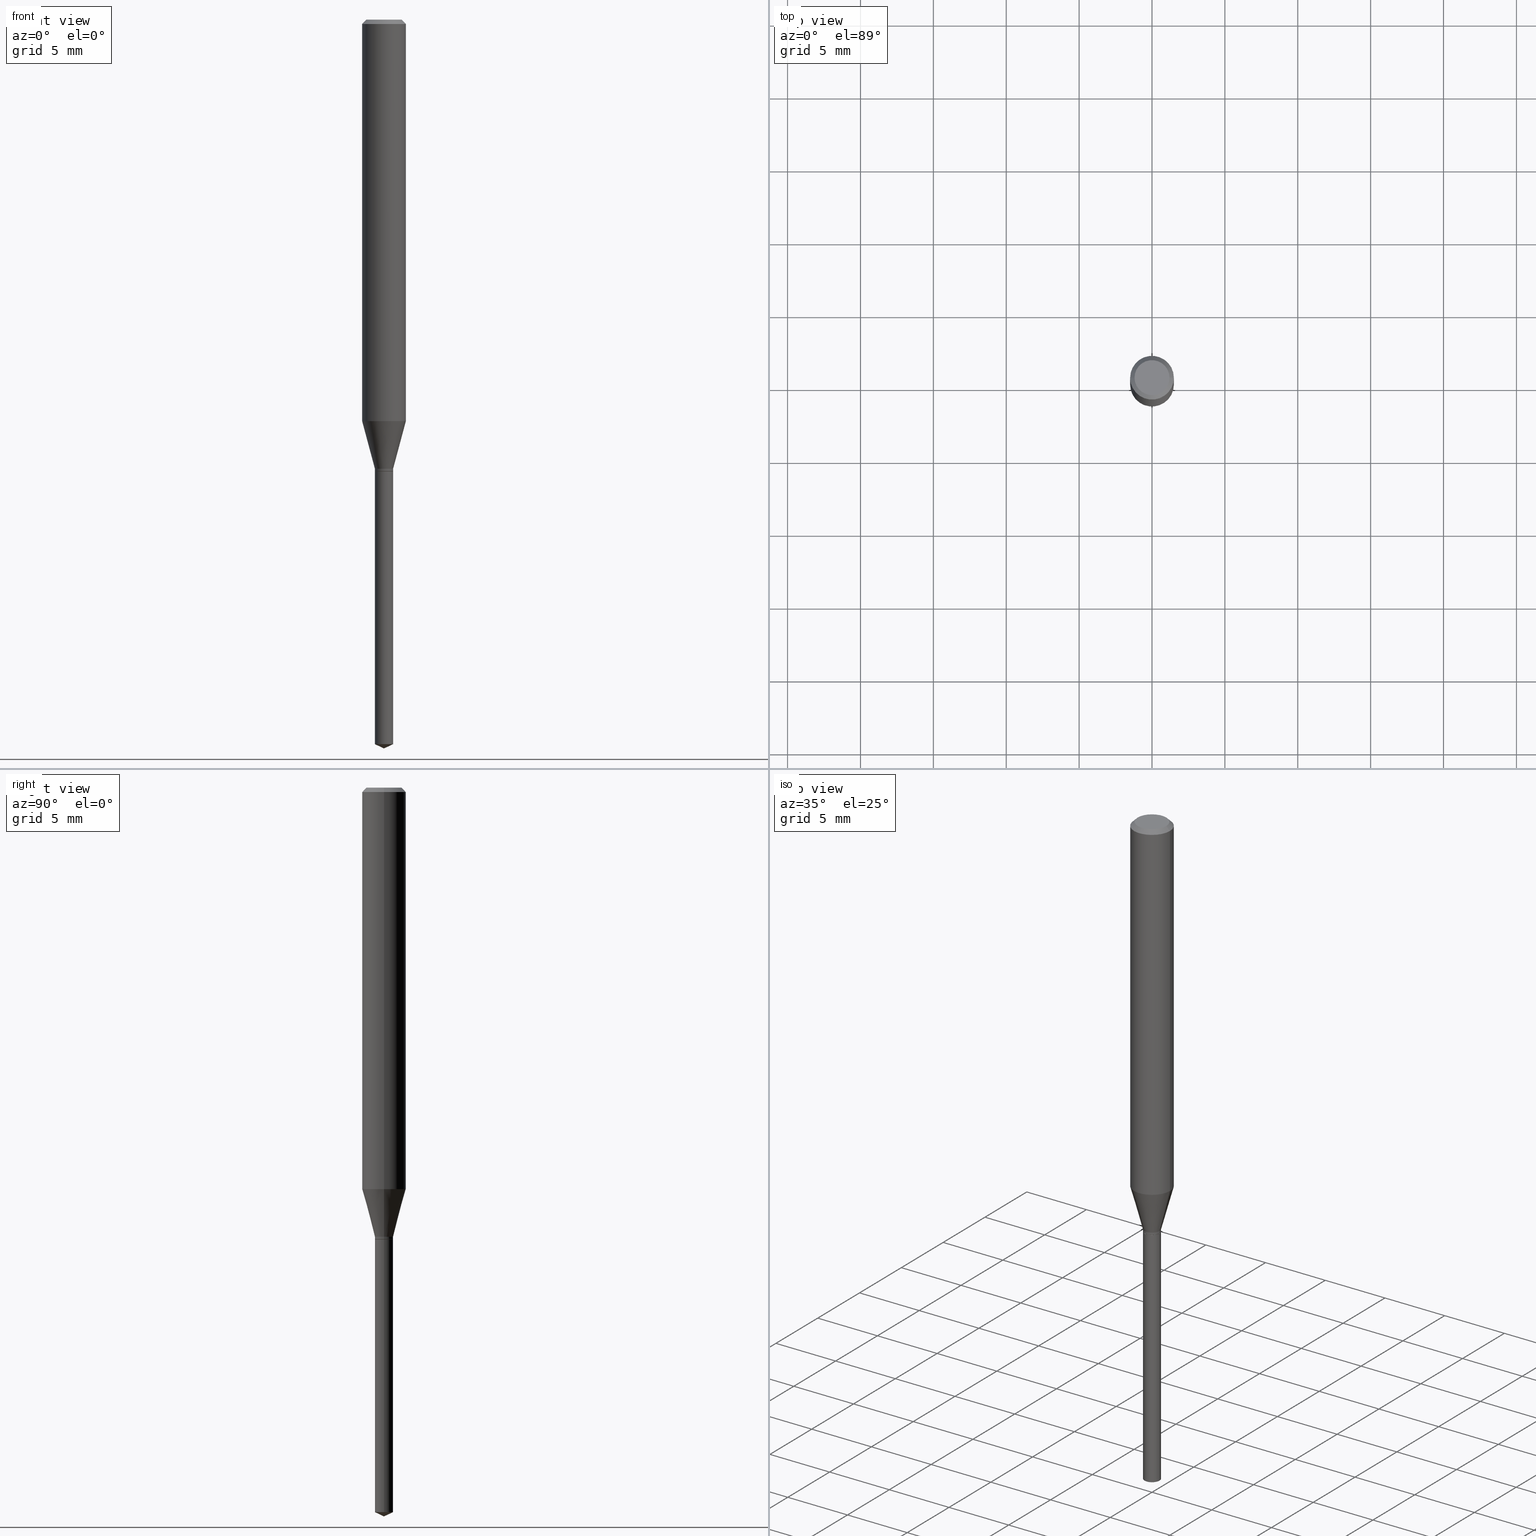
[diagram: canonical four-view strip — front | top / right | iso, engineering-drawing reading convention]
A machine part, canonical four-view strip (front | top / right | iso — engineering-drawing reading convention). The complete STEP part file that produces these views, byte-faithful:
ISO-10303-21;
HEADER;
FILE_DESCRIPTION (( 'STEP AP203' ),
    '1' );
FILE_NAME ('07511.STEP',
    '2024-04-23T22:17:53',
    ( '' ),
    ( '' ),
    'SwSTEP 2.0',
    'SolidWorks 2023',
    '' );
FILE_SCHEMA (( 'CONFIG_CONTROL_DESIGN' ));
ENDSEC;

DATA;
#1 = LINE ( 'NONE', #104, #142 ) ;
#2 = ADVANCED_FACE ( 'NONE', ( #60 ), #220, .T. ) ;
#3 = PRODUCT_RELATED_PRODUCT_CATEGORY ( 'detail', '', ( #56 ) ) ;
#4 = COORDINATED_UNIVERSAL_TIME_OFFSET ( 5, 0, .BEHIND. ) ;
#5 = FACE_OUTER_BOUND ( 'NONE', #195, .T. ) ;
#6 = VECTOR ( 'NONE', #50, 39.37007874015748143 ) ;
#7 = DIRECTION ( 'NONE',  ( 1.000000000000000000, -6.982962677686266711E-15, 4.876185090822587894E-29 ) ) ;
#8 = CARTESIAN_POINT ( 'NONE',  ( 0.02460000000000000381, -7.004710527013262258E-15, -1.957028831609387121 ) ) ;
#9 = CARTESIAN_POINT ( 'NONE',  ( -0.02460000000000000034, -5.372347796603134395E-15, -1.220499999999999696 ) ) ;
#10 = CALENDAR_DATE ( 2024, 23, 4 ) ;
#11 = ADVANCED_FACE ( 'NONE', ( #5 ), #420, .T. ) ;
#12 = CARTESIAN_POINT ( 'NONE',  ( -0.04724000000000000421, 3.504923541997677355E-16, -3.380025165670481712E-19 ) ) ;
#13 = PLANE ( 'NONE',  #227 ) ;
#14 = DIRECTION ( 'NONE',  ( -2.445468806185136597E-29, 3.491481338843145583E-15, 1.000000000000000000 ) ) ;
#15 = ORIENTED_EDGE ( 'NONE', *, *, #443, .F. ) ;
#16 = DIRECTION ( 'NONE',  ( 1.000000000000000000, -6.982962677686280121E-15, 0.000000000000000000 ) ) ;
#17 = ORIENTED_EDGE ( 'NONE', *, *, #404, .T. ) ;
#18 = DIRECTION ( 'NONE',  ( 1.000000000000000000, -6.982962677686277755E-15, 0.000000000000000000 ) ) ;
#19 = DIRECTION ( 'NONE',  ( 2.445468806185136597E-29, -3.491481338843145583E-15, -1.000000000000000000 ) ) ;
#20 = CONICAL_SURFACE ( 'NONE', #202, 84.42940631927440620, 1.134464013796316229 ) ;
#21 = AXIS2_PLACEMENT_3D ( 'NONE', #267, #229, #117 ) ;
#22 = DIRECTION ( 'NONE',  ( 1.000000000000000000, -6.982962677686266711E-15, 4.876176775795935232E-29 ) ) ;
#23 = DIRECTION ( 'NONE',  ( 1.000000000000000000, -6.982962677686280121E-15, 0.000000000000000000 ) ) ;
#24 = CARTESIAN_POINT ( 'NONE',  ( 0.02409999999999999989, -4.429642374590297494E-15, -1.220499999999999696 ) ) ;
#25 = EDGE_CURVE ( 'NONE', #316, #189, #1, .T. ) ;
#26 = CALENDAR_DATE ( 2024, 23, 4 ) ;
#27 = LINE ( 'NONE', #54, #118 ) ;
#28 = CIRCLE ( 'NONE', #329, 0.05905000000000013710 ) ;
#29 = VERTEX_POINT ( 'NONE', #34 ) ;
#30 = ADVANCED_FACE ( 'NONE', ( #187 ), #95, .T. ) ;
#31 = DIRECTION ( 'NONE',  ( 1.000000000000000000, -6.982962677686277755E-15, 0.000000000000000000 ) ) ;
#32 = AXIS2_PLACEMENT_3D ( 'NONE', #244, #403, #209 ) ;
#33 = ORIENTED_EDGE ( 'NONE', *, *, #100, .F. ) ;
#34 = CARTESIAN_POINT ( 'NONE',  ( 0.02460000000000001422, -4.407296894021703037E-15, -1.213100000000000067 ) ) ;
#35 = EDGE_CURVE ( 'NONE', #411, #395, #413, .T. ) ;
#36 = ORIENTED_EDGE ( 'NONE', *, *, #74, .F. ) ;
#37 = PERSON_AND_ORGANIZATION_ROLE ( 'creator' ) ;
#38 = ADVANCED_BREP_SHAPE_REPRESENTATION ( '07511', ( #454, #441, #271 ), #228 ) ;
#39 = EDGE_LOOP ( 'NONE', ( #300, #412 ) ) ;
#40 = DIRECTION ( 'NONE',  ( 0.000000000000000000, 0.000000000000000000, 1.000000000000000000 ) ) ;
#41 = DIRECTION ( 'NONE',  ( 1.000000000000000000, -6.982962677686265922E-15, 4.876176775795935793E-29 ) ) ;
#42 = CARTESIAN_POINT ( 'NONE',  ( 0.04724000000000000421, -3.852183633974369838E-16, -3.380025165621689721E-19 ) ) ;
#43 = DIRECTION ( 'NONE',  ( -0.2588190451025213501, 5.211531920934551042E-15, 0.9659258262890682012 ) ) ;
#44 = AXIS2_PLACEMENT_3D ( 'NONE', #406, #57, #485 ) ;
#45 = DESIGN_CONTEXT ( 'detailed design', #375, 'design' ) ;
#46 = ORIENTED_EDGE ( 'NONE', *, *, #374, .T. ) ;
#47 = CARTESIAN_POINT ( 'NONE',  ( -0.02460000000000001769, -4.072768109772643638E-15, -1.219999999999999751 ) ) ;
#48 = FACE_OUTER_BOUND ( 'NONE', #67, .T. ) ;
#49 = DIRECTION ( 'NONE',  ( -2.445468806185136877E-29, 3.491481338843145188E-15, 1.000000000000000000 ) ) ;
#50 = DIRECTION ( 'NONE',  ( -0.9063077870366508249, 7.915267918739014631E-15, 0.4226182617406975539 ) ) ;
#51 = CIRCLE ( 'NONE', #474, 0.02460000000000001422 ) ;
#52 = APPROVAL ( #148, 'UNSPECIFIED' ) ;
#53 =( LENGTH_UNIT ( ) NAMED_UNIT ( * ) SI_UNIT ( $, .METRE. ) );
#54 = CARTESIAN_POINT ( 'NONE',  ( 0.05905000000000006771, -4.123439461173745257E-16, 2.879382386107503723E-30 ) ) ;
#55 = DIRECTION ( 'NONE',  ( -2.445468806185136877E-29, 3.491481338843145188E-15, 1.000000000000000000 ) ) ;
#56 = PRODUCT ( '07511', '07511', '', ( #139 ) ) ;
#57 = DIRECTION ( 'NONE',  ( -2.445468806185136597E-29, 3.491481338843145583E-15, 1.000000000000000000 ) ) ;
#58 = VECTOR ( 'NONE', #385, 39.37007874015747433 ) ;
#59 = ADVANCED_FACE ( 'NONE', ( #307 ), #434, .T. ) ;
#60 = FACE_OUTER_BOUND ( 'NONE', #349, .T. ) ;
#61 = ORIENTED_EDGE ( 'NONE', *, *, #171, .F. ) ;
#62 = ORIENTED_EDGE ( 'NONE', *, *, #35, .T. ) ;
#63 = AXIS2_PLACEMENT_3D ( 'NONE', #429, #237, #384 ) ;
#64 = EDGE_CURVE ( 'NONE', #316, #342, #159, .T. ) ;
#65 = CIRCLE ( 'NONE', #88, 0.02460000000000000034 ) ;
#66 = APPLICATION_PROTOCOL_DEFINITION ( 'international standard', 'config_control_design', 1994, #339 ) ;
#67 = EDGE_LOOP ( 'NONE', ( #235, #255, #17, #238 ) ) ;
#68 = DATE_AND_TIME ( #414, #334 ) ;
#69 = ORIENTED_EDGE ( 'NONE', *, *, #404, .F. ) ;
#70 = AXIS2_PLACEMENT_3D ( 'NONE', #376, #261, #31 ) ;
#71 = VECTOR ( 'NONE', #55, 39.37007874015748143 ) ;
#72 = APPROVAL_PERSON_ORGANIZATION ( #154, #377, #264 ) ;
#73 = CARTESIAN_POINT ( 'NONE',  ( -0.05905000000000000526, -1.494351323366933161E-15, -0.01181000000000007738 ) ) ;
#74 = EDGE_CURVE ( 'NONE', #206, #105, #481, .T. ) ;
#75 = LINE ( 'NONE', #389, #86 ) ;
#76 = EDGE_LOOP ( 'NONE', ( #387, #319 ) ) ;
#77 = CARTESIAN_POINT ( 'NONE',  ( 2.984694677948958351E-29, -4.261352974058058239E-15, -1.220499999999999696 ) ) ;
#78 = DIRECTION ( 'NONE',  ( 0.7071067811865353603, -2.468850131082130054E-15, 0.7071067811865595631 ) ) ;
#79 = ORIENTED_EDGE ( 'NONE', *, *, #231, .F. ) ;
#80 = CARTESIAN_POINT ( 'NONE',  ( 0.05905000000000013710, -4.198963169172184472E-15, -1.084530849679252063 ) ) ;
#81 = CARTESIAN_POINT ( 'NONE',  ( -0.02460000000000001422, -4.060722499153635658E-15, -1.213100000000000067 ) ) ;
#82 = DIRECTION ( 'NONE',  ( -2.445468806185136597E-29, 3.491481338843145583E-15, 1.000000000000000000 ) ) ;
#83 = ORIENTED_EDGE ( 'NONE', *, *, #310, .T. ) ;
#84 = CC_DESIGN_PERSON_AND_ORGANIZATION_ASSIGNMENT ( #157, #370, ( #324 ) ) ;
#85 = CARTESIAN_POINT ( 'NONE',  ( 4.813905344975441835E-29, -6.872981015512731707E-15, -1.968500000000000139 ) ) ;
#86 = VECTOR ( 'NONE', #196, 39.37007874015748143 ) ;
#87 = DIRECTION ( 'NONE',  ( -2.445468806185136597E-29, 3.491481338843145583E-15, 1.000000000000000000 ) ) ;
#88 = AXIS2_PLACEMENT_3D ( 'NONE', #315, #269, #311 ) ;
#89 = ORGANIZATION ( 'UNSPECIFIED', 'UNSPECIFIED', '' ) ;
#90 = CARTESIAN_POINT ( 'NONE',  ( 0.000000000000000000, 0.000000000000000000, 0.000000000000000000 ) ) ;
#91 = LINE ( 'NONE', #81, #372 ) ;
#92 = EDGE_CURVE ( 'NONE', #197, #410, #75, .T. ) ;
#93 = PLANE ( 'NONE',  #32 ) ;
#94 = ADVANCED_FACE ( 'NONE', ( #437 ), #367, .T. ) ;
#95 = CONICAL_SURFACE ( 'NONE', #379, 0.02460000000000001422, 0.2617993877991500740 ) ;
#96 = LOCAL_TIME ( 18, 17, 53.00000000000000000, #4 ) ;
#97 = CYLINDRICAL_SURFACE ( 'NONE', #44, 0.02460000000000000034 ) ;
#98 = ORIENTED_EDGE ( 'NONE', *, *, #217, .F. ) ;
#99 =( NAMED_UNIT ( * ) PLANE_ANGLE_UNIT ( ) SI_UNIT ( $, .RADIAN. ) );
#100 = EDGE_CURVE ( 'NONE', #410, #395, #91, .T. ) ;
#101 = ORIENTED_EDGE ( 'NONE', *, *, #348, .F. ) ;
#102 = AXIS2_PLACEMENT_3D ( 'NONE', #127, #87, #241 ) ;
#103 = ORIENTED_EDGE ( 'NONE', *, *, #138, .T. ) ;
#104 = CARTESIAN_POINT ( 'NONE',  ( -0.02460000000000000034, -4.086559461061073911E-15, -1.220499999999999918 ) ) ;
#105 = VERTEX_POINT ( 'NONE', #42 ) ;
#106 = DATE_AND_TIME ( #251, #288 ) ;
#107 = VERTEX_POINT ( 'NONE', #468 ) ;
#108 = APPROVAL_STATUS ( 'not_yet_approved' ) ;
#109 = PERSON_AND_ORGANIZATION_ROLE ( 'design_owner' ) ;
#110 = ORIENTED_EDGE ( 'NONE', *, *, #331, .T. ) ;
#111 = CARTESIAN_POINT ( 'NONE',  ( 0.02460000000000000034, -4.433133855929140501E-15, -1.220499999999999696 ) ) ;
#112 = EDGE_CURVE ( 'NONE', #125, #107, #433, .T. ) ;
#113 = DIRECTION ( 'NONE',  ( 1.000000000000000000, -6.982962677686264344E-15, 0.000000000000000000 ) ) ;
#114 = PERSON ( 'UNSPECIFIED', 'UNSPECIFIED', 'UNSPECIFIED', ('UNSPECIFIED'), ('UNSPECIFIED'), ('UNSPECIFIED') ) ;
#115 = PERSON_AND_ORGANIZATION ( #114, #89 ) ;
#116 = DIRECTION ( 'NONE',  ( 1.000000000000000000, -6.982962677686277755E-15, 0.000000000000000000 ) ) ;
#117 = DIRECTION ( 'NONE',  ( 1.000000000000000000, -6.982962677686267499E-15, 0.000000000000000000 ) ) ;
#118 = VECTOR ( 'NONE', #365, 39.37007874015748143 ) ;
#119 = CC_DESIGN_SECURITY_CLASSIFICATION ( #324, ( #301 ) ) ;
#120 = FACE_OUTER_BOUND ( 'NONE', #165, .T. ) ;
#121 = DIRECTION ( 'NONE',  ( -2.445468806185136597E-29, 3.491481338843145583E-15, 1.000000000000000000 ) ) ;
#122 = ORIENTED_EDGE ( 'NONE', *, *, #64, .T. ) ;
#123 = CARTESIAN_POINT ( 'NONE',  ( 2.984694677948958351E-29, -4.261352974058058239E-15, -1.220499999999999696 ) ) ;
#124 = EDGE_CURVE ( 'NONE', #189, #355, #129, .T. ) ;
#125 = VERTEX_POINT ( 'NONE', #73 ) ;
#126 = LINE ( 'NONE', #85, #136 ) ;
#127 = CARTESIAN_POINT ( 'NONE',  ( -9.146439411113230710E-28, 1.305869142145323662E-13, 37.40157874015748263 ) ) ;
#128 = SHAPE_DEFINITION_REPRESENTATION ( #408, #38 ) ;
#129 = CIRCLE ( 'NONE', #473, 0.02460000000000000034 ) ;
#130 = CYLINDRICAL_SURFACE ( 'NONE', #221, 0.02460000000000001769 ) ;
#131 = CARTESIAN_POINT ( 'NONE',  ( -0.02409999999999999989, -4.087462947565762820E-15, -1.220499999999999696 ) ) ;
#132 = DIRECTION ( 'NONE',  ( -2.445468806185136597E-29, 3.491481338843145583E-15, 1.000000000000000000 ) ) ;
#133 = FACE_OUTER_BOUND ( 'NONE', #285, .T. ) ;
#134 = DIRECTION ( 'NONE',  ( 2.445468806185136597E-29, -3.491481338843145583E-15, -1.000000000000000000 ) ) ;
#135 = AXIS2_PLACEMENT_3D ( 'NONE', #191, #345, #7 ) ;
#136 = VECTOR ( 'NONE', #277, 39.37007874015748143 ) ;
#137 = ORIENTED_EDGE ( 'NONE', *, *, #348, .T. ) ;
#138 = EDGE_CURVE ( 'NONE', #218, #197, #407, .T. ) ;
#139 = MECHANICAL_CONTEXT ( 'NONE', #339, 'mechanical' ) ;
#140 = LINE ( 'NONE', #252, #421 ) ;
#141 = ORIENTED_EDGE ( 'NONE', *, *, #217, .T. ) ;
#142 = VECTOR ( 'NONE', #257, 39.37007874015748143 ) ;
#143 = ORIENTED_EDGE ( 'NONE', *, *, #112, .F. ) ;
#144 = ORIENTED_EDGE ( 'NONE', *, *, #284, .T. ) ;
#145 = CC_DESIGN_PERSON_AND_ORGANIZATION_ASSIGNMENT ( #115, #109, ( #56 ) ) ;
#146 = ORIENTED_EDGE ( 'NONE', *, *, #25, .T. ) ;
#147 =( NAMED_UNIT ( * ) SI_UNIT ( $, .STERADIAN. ) SOLID_ANGLE_UNIT ( ) );
#148 = APPROVAL_STATUS ( 'not_yet_approved' ) ;
#149 = CARTESIAN_POINT ( 'NONE',  ( 2.984694677948958351E-29, -4.261352974058058239E-15, -1.220499999999999696 ) ) ;
#150 = AXIS2_PLACEMENT_3D ( 'NONE', #397, #167, #193 ) ;
#151 = VECTOR ( 'NONE', #359, 39.37007874015748143 ) ;
#152 = CARTESIAN_POINT ( 'NONE',  ( -0.05905000000000013710, -3.367043737588469664E-15, -1.084530849679252063 ) ) ;
#153 = CARTESIAN_POINT ( 'NONE',  ( 2.652186362236072778E-29, -3.786619223054809552E-15, -1.084530849679252063 ) ) ;
#154 = PERSON_AND_ORGANIZATION ( #114, #89 ) ;
#155 = CARTESIAN_POINT ( 'NONE',  ( 2.984694677948958351E-29, -4.261352974058058239E-15, -1.220499999999999696 ) ) ;
#156 = DIRECTION ( 'NONE',  ( -2.445468806185136597E-29, 3.491481338843145583E-15, 1.000000000000000000 ) ) ;
#157 = PERSON_AND_ORGANIZATION ( #114, #89 ) ;
#158 = ORIENTED_EDGE ( 'NONE', *, *, #92, .F. ) ;
#159 = CIRCLE ( 'NONE', #63, 0.02460000000000000034 ) ;
#160 = FACE_OUTER_BOUND ( 'NONE', #225, .T. ) ;
#161 = CIRCLE ( 'NONE', #442, 0.02460000000000000034 ) ;
#162 = EDGE_CURVE ( 'NONE', #197, #218, #240, .T. ) ;
#163 = CARTESIAN_POINT ( 'NONE',  ( 0.02409999999999999989, -4.429642374590297494E-15, -1.220499999999999696 ) ) ;
#164 = DIRECTION ( 'NONE',  ( -2.445468806185136597E-29, 3.491481338843145583E-15, 1.000000000000000000 ) ) ;
#165 = EDGE_LOOP ( 'NONE', ( #381, #144, #141, #360 ) ) ;
#166 = CALENDAR_DATE ( 2024, 23, 4 ) ;
#167 = DIRECTION ( 'NONE',  ( -2.445468806185136597E-29, 3.491481338843145583E-15, 1.000000000000000000 ) ) ;
#168 = DATE_AND_TIME ( #166, #364 ) ;
#169 = DIRECTION ( 'NONE',  ( -2.445468806185136597E-29, 3.491481338843145583E-15, 1.000000000000000000 ) ) ;
#170 = AXIS2_PLACEMENT_3D ( 'NONE', #233, #419, #204 ) ;
#171 = EDGE_CURVE ( 'NONE', #105, #107, #351, .T. ) ;
#172 = CARTESIAN_POINT ( 'NONE',  ( 2.984694677948958351E-29, -4.261352974058058239E-15, -1.220499999999999696 ) ) ;
#173 = CARTESIAN_POINT ( 'NONE',  ( 4.813905344975441835E-29, -6.872981015512731707E-15, -1.968500000000000139 ) ) ;
#174 = CARTESIAN_POINT ( 'NONE',  ( 0.02460000000000001769, -1.717808818710822867E-16, 1.199539486845800937E-30 ) ) ;
#175 = CARTESIAN_POINT ( 'NONE',  ( 2.888098660104665518E-31, -4.123439461173782112E-17, -0.01181000000000007738 ) ) ;
#176 = EDGE_CURVE ( 'NONE', #395, #125, #203, .T. ) ;
#177 = VECTOR ( 'NONE', #78, 39.37007874015748854 ) ;
#178 = ORIENTED_EDGE ( 'NONE', *, *, #326, .F. ) ;
#179 = PERSON_AND_ORGANIZATION ( #114, #89 ) ;
#180 = ORIENTED_EDGE ( 'NONE', *, *, #337, .T. ) ;
#181 = COORDINATED_UNIVERSAL_TIME_OFFSET ( 5, 0, .BEHIND. ) ;
#182 = EDGE_CURVE ( 'NONE', #29, #410, #51, .T. ) ;
#183 = ORIENTED_EDGE ( 'NONE', *, *, #266, .F. ) ;
#184 = AXIS2_PLACEMENT_3D ( 'NONE', #90, #82, #423 ) ;
#185 = CIRCLE ( 'NONE', #170, 0.02460000000000001422 ) ;
#186 = DIRECTION ( 'NONE',  ( -2.445468806185136597E-29, 3.491481338843145583E-15, 1.000000000000000000 ) ) ;
#187 = FACE_OUTER_BOUND ( 'NONE', #446, .T. ) ;
#188 = APPLICATION_PROTOCOL_DEFINITION ( 'international standard', 'config_control_design', 1994, #375 ) ;
#189 = VERTEX_POINT ( 'NONE', #9 ) ;
#190 = PRODUCT_DEFINITION ( 'UNKNOWN', '', #301, #45 ) ;
#191 = CARTESIAN_POINT ( 'NONE',  ( 8.265746106709734507E-48, -1.180129479067563789E-33, -3.380025165646692144E-19 ) ) ;
#192 = AXIS2_PLACEMENT_3D ( 'NONE', #199, #464, #278 ) ;
#193 = DIRECTION ( 'NONE',  ( 1.000000000000000000, -6.982962677686266711E-15, 4.876176775795936353E-29 ) ) ;
#194 = PERSON_AND_ORGANIZATION_ROLE ( 'creator' ) ;
#195 = EDGE_LOOP ( 'NONE', ( #180, #110, #290, #98 ) ) ;
#196 = DIRECTION ( 'NONE',  ( -2.445468806185136877E-29, 3.491481338843145188E-15, 1.000000000000000000 ) ) ;
#197 = VERTEX_POINT ( 'NONE', #47 ) ;
#198 = CC_DESIGN_PERSON_AND_ORGANIZATION_ASSIGNMENT ( #383, #37, ( #301 ) ) ;
#199 = CARTESIAN_POINT ( 'NONE',  ( 2.983471943545865549E-29, -4.259607233388635946E-15, -1.219999999999999751 ) ) ;
#200 = APPROVAL_STATUS ( 'not_yet_approved' ) ;
#201 = ORIENTED_EDGE ( 'NONE', *, *, #443, .T. ) ;
#202 = AXIS2_PLACEMENT_3D ( 'NONE', #358, #320, #427 ) ;
#203 = LINE ( 'NONE', #393, #151 ) ;
#204 = DIRECTION ( 'NONE',  ( 1.000000000000000000, -6.982962677686277755E-15, 0.000000000000000000 ) ) ;
#205 = LINE ( 'NONE', #173, #6 ) ;
#206 = VERTEX_POINT ( 'NONE', #12 ) ;
#207 = CARTESIAN_POINT ( 'NONE',  ( 8.265746106709734507E-48, -1.180129479067563789E-33, -3.380025165646692144E-19 ) ) ;
#208 = CARTESIAN_POINT ( 'NONE',  ( -0.02460000000000000381, -6.658136132145194879E-15, -1.957028831609387121 ) ) ;
#209 = DIRECTION ( 'NONE',  ( -1.000000000000000000, 6.982962677686265922E-15, -4.876176775795935793E-29 ) ) ;
#210 = AXIS2_PLACEMENT_3D ( 'NONE', #149, #186, #335 ) ;
#211 = CONICAL_SURFACE ( 'NONE', #449, 0.05905000000000000526, 0.7853981633974452814 ) ;
#212 = ADVANCED_FACE ( 'NONE', ( #472 ), #130, .T. ) ;
#213 = LINE ( 'NONE', #369, #253 ) ;
#214 = DIRECTION ( 'NONE',  ( -0.7071067811865453523, 2.468850131082234184E-15, -0.7071067811865496822 ) ) ;
#215 = CIRCLE ( 'NONE', #281, 0.02409999999999999989 ) ;
#216 = DATE_TIME_ROLE ( 'creation_date' ) ;
#217 = EDGE_CURVE ( 'NONE', #430, #218, #460, .T. ) ;
#218 = VERTEX_POINT ( 'NONE', #282 ) ;
#219 = ORIENTED_EDGE ( 'NONE', *, *, #337, .F. ) ;
#220 = CONICAL_SURFACE ( 'NONE', #70, 0.02460000000000001422, 0.2617993877991500740 ) ;
#221 = AXIS2_PLACEMENT_3D ( 'NONE', #305, #14, #471 ) ;
#222 = ORIENTED_EDGE ( 'NONE', *, *, #25, .F. ) ;
#223 = ORIENTED_EDGE ( 'NONE', *, *, #176, .T. ) ;
#224 = APPROVAL_DATE_TIME ( #68, #377 ) ;
#225 = EDGE_LOOP ( 'NONE', ( #103, #459, #232, #15 ) ) ;
#226 = DIRECTION ( 'NONE',  ( 1.000000000000000000, -6.982962677686264344E-15, 0.000000000000000000 ) ) ;
#227 = AXIS2_PLACEMENT_3D ( 'NONE', #350, #304, #400 ) ;
#228 =( GEOMETRIC_REPRESENTATION_CONTEXT ( 3 ) GLOBAL_UNCERTAINTY_ASSIGNED_CONTEXT ( ( #296 ) ) GLOBAL_UNIT_ASSIGNED_CONTEXT ( ( #260, #99, #147 ) ) REPRESENTATION_CONTEXT ( 'NONE', 'WORKASPACE' ) );
#229 = DIRECTION ( 'NONE',  ( -2.445468806185136597E-29, 3.491481338843145583E-15, 1.000000000000000000 ) ) ;
#230 = LENGTH_MEASURE_WITH_UNIT ( LENGTH_MEASURE( 0.02539999999999999897 ), #53 );
#231 = EDGE_CURVE ( 'NONE', #395, #411, #28, .T. ) ;
#232 = ORIENTED_EDGE ( 'NONE', *, *, #182, .F. ) ;
#233 = CARTESIAN_POINT ( 'NONE',  ( 2.966598208783189597E-29, -4.235516012150619986E-15, -1.213100000000000067 ) ) ;
#234 = CARTESIAN_POINT ( 'NONE',  ( 2.984694677948958351E-29, -4.261352974058058239E-15, -1.220499999999999696 ) ) ;
#235 = ORIENTED_EDGE ( 'NONE', *, *, #440, .F. ) ;
#236 = COORDINATED_UNIVERSAL_TIME_OFFSET ( 5, 0, .BEHIND. ) ;
#237 = DIRECTION ( 'NONE',  ( -2.445468806185136597E-29, 3.491481338843145583E-15, 1.000000000000000000 ) ) ;
#238 = ORIENTED_EDGE ( 'NONE', *, *, #268, .F. ) ;
#239 = CARTESIAN_POINT ( 'NONE',  ( -0.02409999999999999989, -4.090112174739874021E-15, -1.220499999999999696 ) ) ;
#240 = CIRCLE ( 'NONE', #192, 0.02460000000000001769 ) ;
#241 = DIRECTION ( 'NONE',  ( 1.000000000000000000, -6.982962677686266711E-15, 0.000000000000000000 ) ) ;
#242 = CARTESIAN_POINT ( 'NONE',  ( 0.000000000000000000, 0.000000000000000000, 0.000000000000000000 ) ) ;
#243 = CC_DESIGN_DATE_AND_TIME_ASSIGNMENT ( #336, #390, ( #324 ) ) ;
#244 = CARTESIAN_POINT ( 'NONE',  ( 7.716958325296806448E-29, 2.515517912663959101E-15, -1.220499999999999696 ) ) ;
#245 = AXIS2_PLACEMENT_3D ( 'NONE', #361, #368, #325 ) ;
#246 = CARTESIAN_POINT ( 'NONE',  ( 2.984694677948958351E-29, -4.261352974058058239E-15, -1.220499999999999696 ) ) ;
#247 = EDGE_CURVE ( 'NONE', #342, #316, #65, .T. ) ;
#248 = ADVANCED_FACE ( 'NONE', ( #120 ), #287, .T. ) ;
#249 = ORIENTED_EDGE ( 'NONE', *, *, #182, .T. ) ;
#250 = DIRECTION ( 'NONE',  ( 1.000000000000000000, -6.982962677686266711E-15, 4.876185090822587894E-29 ) ) ;
#251 = CALENDAR_DATE ( 2024, 23, 4 ) ;
#252 = CARTESIAN_POINT ( 'NONE',  ( 0.02460000000000000034, -4.433133855929141290E-15, -1.220499999999999918 ) ) ;
#253 = VECTOR ( 'NONE', #214, 39.37007874015748143 ) ;
#254 = ADVANCED_FACE ( 'NONE', ( #318 ), #354, .T. ) ;
#255 = ORIENTED_EDGE ( 'NONE', *, *, #171, .T. ) ;
#256 = ORIENTED_EDGE ( 'NONE', *, *, #247, .T. ) ;
#257 = DIRECTION ( 'NONE',  ( -2.445468806185136877E-29, 3.491481338843145188E-15, 1.000000000000000000 ) ) ;
#258 = ORIENTED_EDGE ( 'NONE', *, *, #100, .T. ) ;
#259 = CIRCLE ( 'NONE', #435, 0.02409999999999999989 ) ;
#260 =( CONVERSION_BASED_UNIT ( 'INCH', #230 ) LENGTH_UNIT ( ) NAMED_UNIT ( #439 ) );
#261 = DIRECTION ( 'NONE',  ( -2.445468806185136597E-29, 3.491481338843145583E-15, 1.000000000000000000 ) ) ;
#262 = EDGE_CURVE ( 'NONE', #424, #316, #205, .T. ) ;
#263 = ORIENTED_EDGE ( 'NONE', *, *, #268, .T. ) ;
#264 = APPROVAL_ROLE ( '' ) ;
#265 = LINE ( 'NONE', #416, #58 ) ;
#266 = EDGE_CURVE ( 'NONE', #411, #107, #27, .T. ) ;
#267 = CARTESIAN_POINT ( 'NONE',  ( 2.888098660104665518E-31, -4.123439461173782112E-17, -0.01181000000000007738 ) ) ;
#268 = EDGE_CURVE ( 'NONE', #206, #125, #213, .T. ) ;
#269 = DIRECTION ( 'NONE',  ( -2.445468806185136597E-29, 3.491481338843145583E-15, 1.000000000000000000 ) ) ;
#270 = DIRECTION ( 'NONE',  ( -2.445468806185136597E-29, 3.491481338843145583E-15, 1.000000000000000000 ) ) ;
#271 = AXIS2_PLACEMENT_3D ( 'NONE', #453, #40, #332 ) ;
#272 = PLANE ( 'NONE',  #343 ) ;
#273 = DIRECTION ( 'NONE',  ( -2.445468806185136597E-29, 3.491481338843145583E-15, 1.000000000000000000 ) ) ;
#274 = ORIENTED_EDGE ( 'NONE', *, *, #310, .F. ) ;
#275 = FACE_OUTER_BOUND ( 'NONE', #76, .T. ) ;
#276 = ORIENTED_EDGE ( 'NONE', *, *, #262, .T. ) ;
#277 = DIRECTION ( 'NONE',  ( 0.9063077870366508249, -4.853149677051392201E-15, 0.4226182617406975539 ) ) ;
#278 = DIRECTION ( 'NONE',  ( 1.000000000000000000, -6.982962677686276966E-15, 0.000000000000000000 ) ) ;
#279 = EDGE_LOOP ( 'NONE', ( #61, #36, #263, #298 ) ) ;
#280 = AXIS2_PLACEMENT_3D ( 'NONE', #353, #164, #402 ) ;
#281 = AXIS2_PLACEMENT_3D ( 'NONE', #155, #317, #346 ) ;
#282 = CARTESIAN_POINT ( 'NONE',  ( 0.02460000000000001769, -4.431388115259718997E-15, -1.219999999999999751 ) ) ;
#283 = DIRECTION ( 'NONE',  ( 1.000000000000000000, -6.982962677686261977E-15, 0.000000000000000000 ) ) ;
#284 = EDGE_CURVE ( 'NONE', #461, #430, #259, .T. ) ;
#285 = EDGE_LOOP ( 'NONE', ( #222, #122, #83, #330 ) ) ;
#286 = CYLINDRICAL_SURFACE ( 'NONE', #245, 0.02460000000000000034 ) ;
#287 = CONICAL_SURFACE ( 'NONE', #333, 0.02409999999999999989, 0.7853981633974311816 ) ;
#288 = LOCAL_TIME ( 18, 17, 53.00000000000000000, #306 ) ;
#289 = APPROVAL_ROLE ( '' ) ;
#290 = ORIENTED_EDGE ( 'NONE', *, *, #138, .F. ) ;
#291 = ADVANCED_FACE ( 'NONE', ( #133 ), #97, .T. ) ;
#292 = AXIS2_PLACEMENT_3D ( 'NONE', #207, #483, #250 ) ;
#293 = CC_DESIGN_APPROVAL ( #52, ( #190 ) ) ;
#294 = APPROVAL_PERSON_ORGANIZATION ( #418, #52, #289 ) ;
#295 = ORIENTED_EDGE ( 'NONE', *, *, #162, .T. ) ;
#296 = UNCERTAINTY_MEASURE_WITH_UNIT (LENGTH_MEASURE( 1.000000000000000082E-05 ), #260, 'distance_accuracy_value', 'NONE');
#297 = APPROVAL ( #200, 'UNSPECIFIED' ) ;
#298 = ORIENTED_EDGE ( 'NONE', *, *, #112, .T. ) ;
#299 = AXIS2_PLACEMENT_3D ( 'NONE', #469, #270, #226 ) ;
#300 = ORIENTED_EDGE ( 'NONE', *, *, #490, .T. ) ;
#301 = PRODUCT_DEFINITION_FORMATION_WITH_SPECIFIED_SOURCE ( 'ANY', '', #56, .NOT_KNOWN. ) ;
#302 = PERSON_AND_ORGANIZATION_ROLE ( 'design_supplier' ) ;
#303 = EDGE_LOOP ( 'NONE', ( #256, #146, #489, #274 ) ) ;
#304 = DIRECTION ( 'NONE',  ( 2.438088387897960049E-29, -3.491481338843145188E-15, -1.000000000000000000 ) ) ;
#305 = CARTESIAN_POINT ( 'NONE',  ( 0.000000000000000000, 0.000000000000000000, 0.000000000000000000 ) ) ;
#306 = COORDINATED_UNIVERSAL_TIME_OFFSET ( 5, 0, .BEHIND. ) ;
#307 = FACE_OUTER_BOUND ( 'NONE', #391, .T. ) ;
#308 = ORIENTED_EDGE ( 'NONE', *, *, #326, .T. ) ;
#309 = DIRECTION ( 'NONE',  ( -0.7071067811865353603, 7.493145998870309984E-15, 0.7071067811865595631 ) ) ;
#310 = EDGE_CURVE ( 'NONE', #342, #355, #140, .T. ) ;
#311 = DIRECTION ( 'NONE',  ( 1.000000000000000000, -6.982962677686261977E-15, 0.000000000000000000 ) ) ;
#312 = CONICAL_SURFACE ( 'NONE', #380, 0.05905000000000000526, 0.7853981633974452814 ) ;
#313 = ORIENTED_EDGE ( 'NONE', *, *, #64, .F. ) ;
#314 = FACE_OUTER_BOUND ( 'NONE', #378, .T. ) ;
#315 = CARTESIAN_POINT ( 'NONE',  ( 4.785852960505700235E-29, -6.832929645142179996E-15, -1.957028831609387121 ) ) ;
#316 = VERTEX_POINT ( 'NONE', #208 ) ;
#317 = DIRECTION ( 'NONE',  ( -2.445468806185136597E-29, 3.491481338843145583E-15, 1.000000000000000000 ) ) ;
#318 = FACE_OUTER_BOUND ( 'NONE', #382, .T. ) ;
#319 = ORIENTED_EDGE ( 'NONE', *, *, #440, .T. ) ;
#320 = DIRECTION ( 'NONE',  ( -2.445468806185136597E-29, 3.491481338843145583E-15, 1.000000000000000000 ) ) ;
#321 = CARTESIAN_POINT ( 'NONE',  ( 0.05905000000000000526, -4.463468013801467941E-16, -0.01181000000000007738 ) ) ;
#322 = DIRECTION ( 'NONE',  ( -1.000000000000000000, 6.982962677686267499E-15, 0.000000000000000000 ) ) ;
#323 = CIRCLE ( 'NONE', #292, 0.04724000000000000421 ) ;
#324 = SECURITY_CLASSIFICATION ( '', '', #458 ) ;
#325 = DIRECTION ( 'NONE',  ( 1.000000000000000000, -6.982962677686281699E-15, 0.000000000000000000 ) ) ;
#326 = EDGE_CURVE ( 'NONE', #424, #342, #126, .T. ) ;
#327 = EDGE_LOOP ( 'NONE', ( #158, #295, #201, #101 ) ) ;
#328 = DIRECTION ( 'NONE',  ( -1.000000000000000000, 6.982962677686267499E-15, 0.000000000000000000 ) ) ;
#329 = AXIS2_PLACEMENT_3D ( 'NONE', #153, #156, #113 ) ;
#330 = ORIENTED_EDGE ( 'NONE', *, *, #124, .F. ) ;
#331 = EDGE_CURVE ( 'NONE', #461, #197, #431, .T. ) ;
#332 = DIRECTION ( 'NONE',  ( 1.000000000000000000, 0.000000000000000000, 0.000000000000000000 ) ) ;
#333 = AXIS2_PLACEMENT_3D ( 'NONE', #234, #428, #16 ) ;
#334 = LOCAL_TIME ( 18, 17, 53.00000000000000000, #181 ) ;
#335 = DIRECTION ( 'NONE',  ( 1.000000000000000000, -6.982962677686280121E-15, 0.000000000000000000 ) ) ;
#336 = DATE_AND_TIME ( #26, #373 ) ;
#337 = EDGE_CURVE ( 'NONE', #430, #461, #215, .T. ) ;
#338 = ADVANCED_FACE ( 'NONE', ( #275 ), #13, .F. ) ;
#339 = APPLICATION_CONTEXT ( 'configuration controlled 3d designs of mechanical parts and assemblies' ) ;
#340 = ORIENTED_EDGE ( 'NONE', *, *, #176, .F. ) ;
#341 = APPROVAL_DATE_TIME ( #106, #52 ) ;
#342 = VERTEX_POINT ( 'NONE', #8 ) ;
#343 = AXIS2_PLACEMENT_3D ( 'NONE', #77, #392, #41 ) ;
#344 = PERSON_AND_ORGANIZATION ( #114, #89 ) ;
#345 = DIRECTION ( 'NONE',  ( -2.445468806185136597E-29, 3.491481338843145583E-15, 1.000000000000000000 ) ) ;
#346 = DIRECTION ( 'NONE',  ( 1.000000000000000000, -6.982962677686280121E-15, 0.000000000000000000 ) ) ;
#347 = DIRECTION ( 'NONE',  ( 1.000000000000000000, -6.982962677686276966E-15, 0.000000000000000000 ) ) ;
#348 = EDGE_CURVE ( 'NONE', #410, #29, #185, .T. ) ;
#349 = EDGE_LOOP ( 'NONE', ( #249, #258, #484, #451 ) ) ;
#350 = CARTESIAN_POINT ( 'NONE',  ( 4.132873053354867254E-48, -5.900647395337818946E-34, -1.690012582823346072E-19 ) ) ;
#351 = LINE ( 'NONE', #321, #398 ) ;
#352 = CARTESIAN_POINT ( 'NONE',  ( -0.02460000000000001422, -4.072768109772643638E-15, -1.213100000000000067 ) ) ;
#353 = CARTESIAN_POINT ( 'NONE',  ( 2.888098660104665518E-31, -4.123439461173782112E-17, -0.01181000000000007738 ) ) ;
#354 = CONICAL_SURFACE ( 'NONE', #102, 84.42940631927440620, 1.134464013796316229 ) ;
#355 = VERTEX_POINT ( 'NONE', #111 ) ;
#356 = CC_DESIGN_DATE_AND_TIME_ASSIGNMENT ( #456, #216, ( #190 ) ) ;
#357 = DIRECTION ( 'NONE',  ( 1.000000000000000000, -6.982962677686261977E-15, 0.000000000000000000 ) ) ;
#358 = CARTESIAN_POINT ( 'NONE',  ( -9.146439411113230710E-28, 1.305869142145323662E-13, 37.40157874015748263 ) ) ;
#359 = DIRECTION ( 'NONE',  ( -2.445468806185136877E-29, 3.491481338843145188E-15, 1.000000000000000000 ) ) ;
#360 = ORIENTED_EDGE ( 'NONE', *, *, #162, .F. ) ;
#361 = CARTESIAN_POINT ( 'NONE',  ( 2.984694677948958911E-29, -4.261352974058059028E-15, -1.220499999999999918 ) ) ;
#362 = CLOSED_SHELL ( 'NONE', ( #457, #254, #363, #291, #480 ) ) ;
#363 = ADVANCED_FACE ( 'NONE', ( #314 ), #20, .T. ) ;
#364 = LOCAL_TIME ( 18, 17, 53.00000000000000000, #236 ) ;
#365 = DIRECTION ( 'NONE',  ( -2.445468806185136877E-29, 3.491481338843145188E-15, 1.000000000000000000 ) ) ;
#366 = APPROVAL_ROLE ( '' ) ;
#367 = CYLINDRICAL_SURFACE ( 'NONE', #150, 0.05905000000000006771 ) ;
#368 = DIRECTION ( 'NONE',  ( -2.445468806185136597E-29, 3.491481338843145583E-15, 1.000000000000000000 ) ) ;
#369 = CARTESIAN_POINT ( 'NONE',  ( -0.05905000000000000526, 3.711095515056362547E-16, -0.01181000000000007738 ) ) ;
#370 = PERSON_AND_ORGANIZATION_ROLE ( 'classification_officer' ) ;
#371 = CYLINDRICAL_SURFACE ( 'NONE', #386, 0.02460000000000001769 ) ;
#372 = VECTOR ( 'NONE', #43, 39.37007874015747433 ) ;
#373 = LOCAL_TIME ( 18, 17, 53.00000000000000000, #425 ) ;
#374 = EDGE_CURVE ( 'NONE', #29, #411, #265, .T. ) ;
#375 = APPLICATION_CONTEXT ( 'configuration controlled 3d designs of mechanical parts and assemblies' ) ;
#376 = CARTESIAN_POINT ( 'NONE',  ( 2.966598208783189597E-29, -4.235516012150619986E-15, -1.213100000000000067 ) ) ;
#377 = APPROVAL ( #108, 'UNSPECIFIED' ) ;
#378 = EDGE_LOOP ( 'NONE', ( #448, #308, #313 ) ) ;
#379 = AXIS2_PLACEMENT_3D ( 'NONE', #394, #121, #116 ) ;
#380 = AXIS2_PLACEMENT_3D ( 'NONE', #405, #19, #328 ) ;
#381 = ORIENTED_EDGE ( 'NONE', *, *, #331, .F. ) ;
#382 = EDGE_LOOP ( 'NONE', ( #178, #276, #470 ) ) ;
#383 = PERSON_AND_ORGANIZATION ( #114, #89 ) ;
#384 = DIRECTION ( 'NONE',  ( 1.000000000000000000, -6.982962677686261977E-15, 0.000000000000000000 ) ) ;
#385 = DIRECTION ( 'NONE',  ( 0.2588190451025213501, 1.565188264969621968E-15, 0.9659258262890682012 ) ) ;
#386 = AXIS2_PLACEMENT_3D ( 'NONE', #242, #169, #22 ) ;
#387 = ORIENTED_EDGE ( 'NONE', *, *, #74, .T. ) ;
#388 = CARTESIAN_POINT ( 'NONE',  ( 2.983471943545865549E-29, -4.259607233388635946E-15, -1.219999999999999751 ) ) ;
#389 = CARTESIAN_POINT ( 'NONE',  ( -0.02460000000000001769, 1.747935129969847714E-16, -1.210058032202707759E-30 ) ) ;
#390 = DATE_TIME_ROLE ( 'classification_date' ) ;
#391 = EDGE_LOOP ( 'NONE', ( #340, #486, #487, #143 ) ) ;
#392 = DIRECTION ( 'NONE',  ( -2.438088387897960049E-29, 3.491481338843145188E-15, 1.000000000000000000 ) ) ;
#393 = CARTESIAN_POINT ( 'NONE',  ( -0.05905000000000006771, 4.195754854663396409E-16, -2.904631170795525045E-30 ) ) ;
#394 = CARTESIAN_POINT ( 'NONE',  ( 2.966598208783189597E-29, -4.235516012150619986E-15, -1.213100000000000067 ) ) ;
#395 = VERTEX_POINT ( 'NONE', #152 ) ;
#396 = CC_DESIGN_PERSON_AND_ORGANIZATION_ASSIGNMENT ( #344, #302, ( #301 ) ) ;
#397 = CARTESIAN_POINT ( 'NONE',  ( 0.000000000000000000, 0.000000000000000000, 0.000000000000000000 ) ) ;
#398 = VECTOR ( 'NONE', #426, 39.37007874015748143 ) ;
#399 = APPROVAL_DATE_TIME ( #168, #297 ) ;
#400 = DIRECTION ( 'NONE',  ( -1.000000000000000000, 6.982962677686265922E-15, -4.876176775795935793E-29 ) ) ;
#401 = CARTESIAN_POINT ( 'NONE',  ( 2.966598208783189597E-29, -4.235516012150619986E-15, -1.213100000000000067 ) ) ;
#402 = DIRECTION ( 'NONE',  ( 1.000000000000000000, -6.982962677686267499E-15, 0.000000000000000000 ) ) ;
#403 = DIRECTION ( 'NONE',  ( 2.438088387897960049E-29, -3.491481338843145188E-15, -1.000000000000000000 ) ) ;
#404 = EDGE_CURVE ( 'NONE', #107, #125, #465, .T. ) ;
#405 = CARTESIAN_POINT ( 'NONE',  ( 2.888098660104665518E-31, -4.123439461173782112E-17, -0.01181000000000007738 ) ) ;
#406 = CARTESIAN_POINT ( 'NONE',  ( 2.984694677948958911E-29, -4.261352974058059028E-15, -1.220499999999999918 ) ) ;
#407 = CIRCLE ( 'NONE', #488, 0.02460000000000001769 ) ;
#408 = PRODUCT_DEFINITION_SHAPE ( 'NONE', 'NONE',  #190 ) ;
#409 = ADVANCED_FACE ( 'NONE', ( #462 ), #272, .F. ) ;
#410 = VERTEX_POINT ( 'NONE', #352 ) ;
#411 = VERTEX_POINT ( 'NONE', #80 ) ;
#412 = ORIENTED_EDGE ( 'NONE', *, *, #124, .T. ) ;
#413 = CIRCLE ( 'NONE', #299, 0.05905000000000013710 ) ;
#414 = CALENDAR_DATE ( 2024, 23, 4 ) ;
#415 = ADVANCED_FACE ( 'NONE', ( #160 ), #371, .T. ) ;
#416 = CARTESIAN_POINT ( 'NONE',  ( 0.02460000000000001422, -4.407296894021703037E-15, -1.213100000000000067 ) ) ;
#417 = ADVANCED_FACE ( 'NONE', ( #48 ), #211, .T. ) ;
#418 = PERSON_AND_ORGANIZATION ( #114, #89 ) ;
#419 = DIRECTION ( 'NONE',  ( -2.445468806185136597E-29, 3.491481338843145583E-15, 1.000000000000000000 ) ) ;
#420 = CONICAL_SURFACE ( 'NONE', #210, 0.02409999999999999989, 0.7853981633974311816 ) ;
#421 = VECTOR ( 'NONE', #49, 39.37007874015748143 ) ;
#422 = CC_DESIGN_APPROVAL ( #377, ( #301 ) ) ;
#423 = DIRECTION ( 'NONE',  ( 1.000000000000000000, -6.982962677686266711E-15, 4.876176775795936353E-29 ) ) ;
#424 = VERTEX_POINT ( 'NONE', #477 ) ;
#425 = COORDINATED_UNIVERSAL_TIME_OFFSET ( 5, 0, .BEHIND. ) ;
#426 = DIRECTION ( 'NONE',  ( 0.7071067811865453523, -7.319954787623248157E-15, -0.7071067811865496822 ) ) ;
#427 = DIRECTION ( 'NONE',  ( 1.000000000000000000, -6.982962677686266711E-15, 0.000000000000000000 ) ) ;
#428 = DIRECTION ( 'NONE',  ( -2.445468806185136597E-29, 3.491481338843145583E-15, 1.000000000000000000 ) ) ;
#429 = CARTESIAN_POINT ( 'NONE',  ( 4.785852960505700235E-29, -6.832929645142179996E-15, -1.957028831609387121 ) ) ;
#430 = VERTEX_POINT ( 'NONE', #24 ) ;
#431 = LINE ( 'NONE', #239, #482 ) ;
#432 = DIRECTION ( 'NONE',  ( -2.445468806185136597E-29, 3.491481338843145583E-15, 1.000000000000000000 ) ) ;
#433 = CIRCLE ( 'NONE', #280, 0.05905000000000000526 ) ;
#434 = CYLINDRICAL_SURFACE ( 'NONE', #184, 0.05905000000000006771 ) ;
#435 = AXIS2_PLACEMENT_3D ( 'NONE', #246, #445, #23 ) ;
#436 = DIRECTION ( 'NONE',  ( -2.445468806185136597E-29, 3.491481338843145583E-15, 1.000000000000000000 ) ) ;
#437 = FACE_OUTER_BOUND ( 'NONE', #452, .T. ) ;
#438 = FACE_OUTER_BOUND ( 'NONE', #39, .T. ) ;
#439 = DIMENSIONAL_EXPONENTS ( 1.000000000000000000, 0.000000000000000000, 0.000000000000000000, 0.000000000000000000, 0.000000000000000000, 0.000000000000000000, 0.000000000000000000 ) ;
#440 = EDGE_CURVE ( 'NONE', #105, #206, #323, .T. ) ;
#441 = MANIFOLD_SOLID_BREP ( 'Body-Move/Copy2[2]', #455 ) ;
#442 = AXIS2_PLACEMENT_3D ( 'NONE', #172, #132, #283 ) ;
#443 = EDGE_CURVE ( 'NONE', #218, #29, #478, .T. ) ;
#444 = FACE_OUTER_BOUND ( 'NONE', #303, .T. ) ;
#445 = DIRECTION ( 'NONE',  ( -2.445468806185136597E-29, 3.491481338843145583E-15, 1.000000000000000000 ) ) ;
#446 = EDGE_LOOP ( 'NONE', ( #33, #137, #46, #79 ) ) ;
#447 = PERSON_AND_ORGANIZATION ( #114, #89 ) ;
#448 = ORIENTED_EDGE ( 'NONE', *, *, #262, .F. ) ;
#449 = AXIS2_PLACEMENT_3D ( 'NONE', #175, #134, #322 ) ;
#450 = CC_DESIGN_APPROVAL ( #297, ( #324 ) ) ;
#451 = ORIENTED_EDGE ( 'NONE', *, *, #374, .F. ) ;
#452 = EDGE_LOOP ( 'NONE', ( #62, #223, #69, #183 ) ) ;
#453 = CARTESIAN_POINT ( 'NONE',  ( 0.000000000000000000, 0.000000000000000000, 0.000000000000000000 ) ) ;
#454 = MANIFOLD_SOLID_BREP ( 'Body-Move/Copy2[1]', #362 ) ;
#455 = CLOSED_SHELL ( 'NONE', ( #11, #417, #94, #2, #415, #212, #30, #59, #476, #338, #409, #248 ) ) ;
#456 = DATE_AND_TIME ( #10, #96 ) ;
#457 = ADVANCED_FACE ( 'NONE', ( #444 ), #286, .T. ) ;
#458 = SECURITY_CLASSIFICATION_LEVEL ( 'unclassified' ) ;
#459 = ORIENTED_EDGE ( 'NONE', *, *, #92, .T. ) ;
#460 = LINE ( 'NONE', #163, #177 ) ;
#461 = VERTEX_POINT ( 'NONE', #131 ) ;
#462 = FACE_OUTER_BOUND ( 'NONE', #475, .T. ) ;
#463 = CC_DESIGN_PERSON_AND_ORGANIZATION_ASSIGNMENT ( #447, #194, ( #190 ) ) ;
#464 = DIRECTION ( 'NONE',  ( -2.445468806185136597E-29, 3.491481338843145583E-15, 1.000000000000000000 ) ) ;
#465 = CIRCLE ( 'NONE', #21, 0.05905000000000000526 ) ;
#466 = APPROVAL_PERSON_ORGANIZATION ( #179, #297, #366 ) ;
#467 = ORIENTED_EDGE ( 'NONE', *, *, #284, .F. ) ;
#468 = CARTESIAN_POINT ( 'NONE',  ( 0.05905000000000000526, -4.535783407291119586E-16, -0.01181000000000007738 ) ) ;
#469 = CARTESIAN_POINT ( 'NONE',  ( 2.652186362236072778E-29, -3.786619223054809552E-15, -1.084530849679252063 ) ) ;
#470 = ORIENTED_EDGE ( 'NONE', *, *, #247, .F. ) ;
#471 = DIRECTION ( 'NONE',  ( 1.000000000000000000, -6.982962677686266711E-15, 4.876176775795935232E-29 ) ) ;
#472 = FACE_OUTER_BOUND ( 'NONE', #327, .T. ) ;
#473 = AXIS2_PLACEMENT_3D ( 'NONE', #123, #273, #357 ) ;
#474 = AXIS2_PLACEMENT_3D ( 'NONE', #401, #436, #18 ) ;
#475 = EDGE_LOOP ( 'NONE', ( #219, #467 ) ) ;
#476 = ADVANCED_FACE ( 'NONE', ( #479 ), #312, .T. ) ;
#477 = CARTESIAN_POINT ( 'NONE',  ( 4.813905344975441835E-29, -6.872981015512731707E-15, -1.968500000000000139 ) ) ;
#478 = LINE ( 'NONE', #174, #71 ) ;
#479 = FACE_OUTER_BOUND ( 'NONE', #279, .T. ) ;
#480 = ADVANCED_FACE ( 'NONE', ( #438 ), #93, .F. ) ;
#481 = CIRCLE ( 'NONE', #135, 0.04724000000000000421 ) ;
#482 = VECTOR ( 'NONE', #309, 39.37007874015748854 ) ;
#483 = DIRECTION ( 'NONE',  ( -2.445468806185136597E-29, 3.491481338843145583E-15, 1.000000000000000000 ) ) ;
#484 = ORIENTED_EDGE ( 'NONE', *, *, #35, .F. ) ;
#485 = DIRECTION ( 'NONE',  ( 1.000000000000000000, -6.982962677686281699E-15, 0.000000000000000000 ) ) ;
#486 = ORIENTED_EDGE ( 'NONE', *, *, #231, .T. ) ;
#487 = ORIENTED_EDGE ( 'NONE', *, *, #266, .T. ) ;
#488 = AXIS2_PLACEMENT_3D ( 'NONE', #388, #432, #347 ) ;
#489 = ORIENTED_EDGE ( 'NONE', *, *, #490, .F. ) ;
#490 = EDGE_CURVE ( 'NONE', #355, #189, #161, .T. ) ;
ENDSEC;
END-ISO-10303-21;
